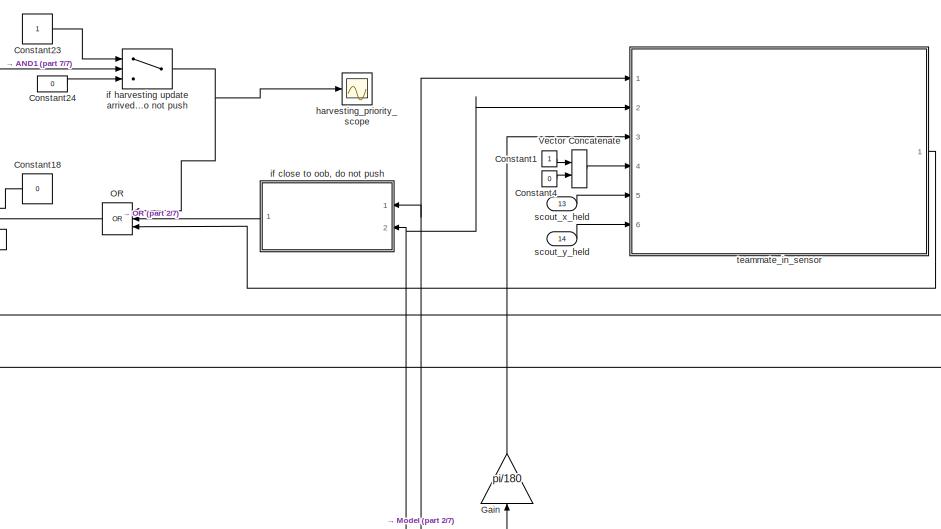
[diagram: root canvas - part 1/7, top center region]
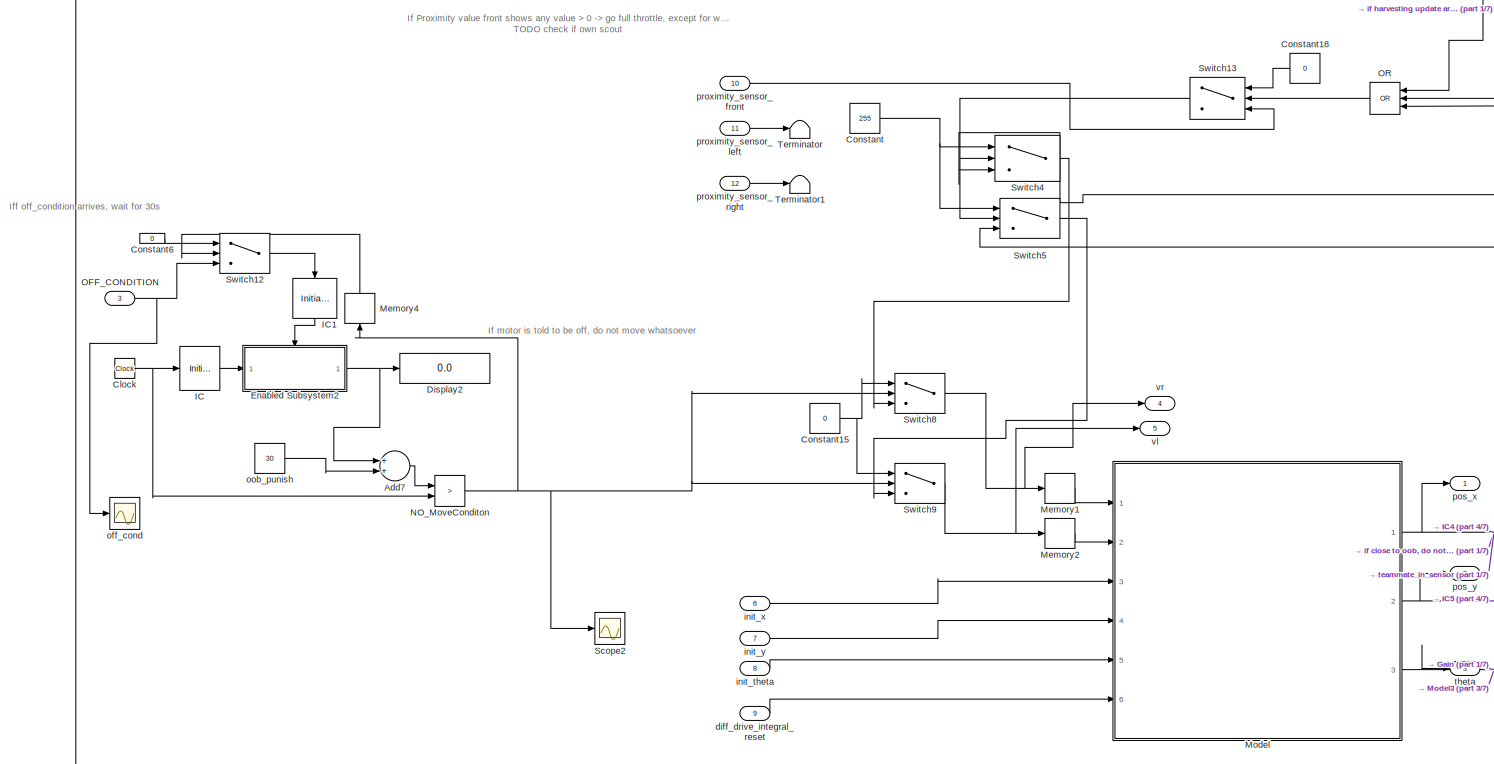
[diagram: root canvas - part 2/7, top left region]
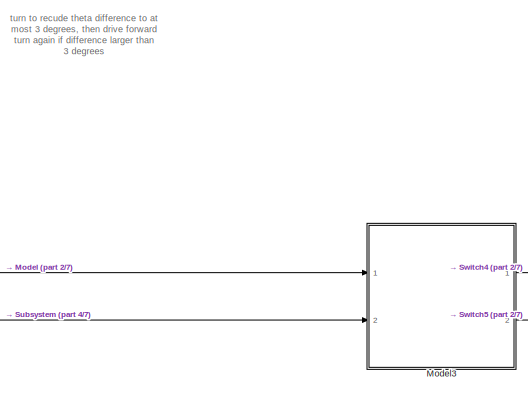
[diagram: root canvas - part 3/7, top right region]
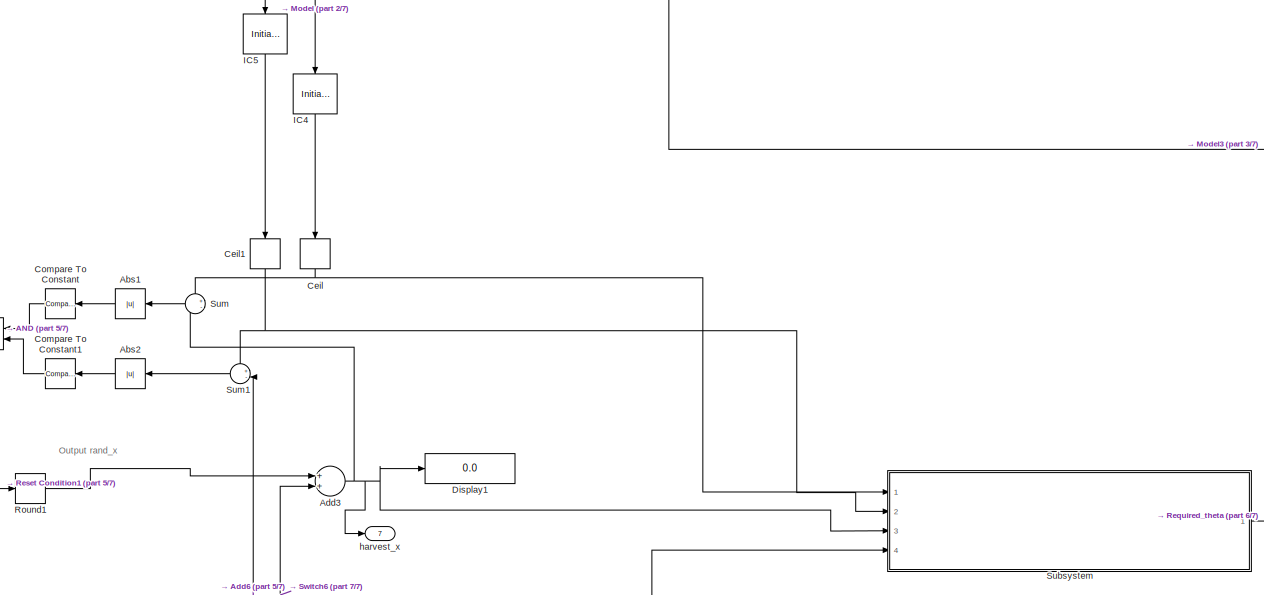
[diagram: root canvas - part 4/7, central region]
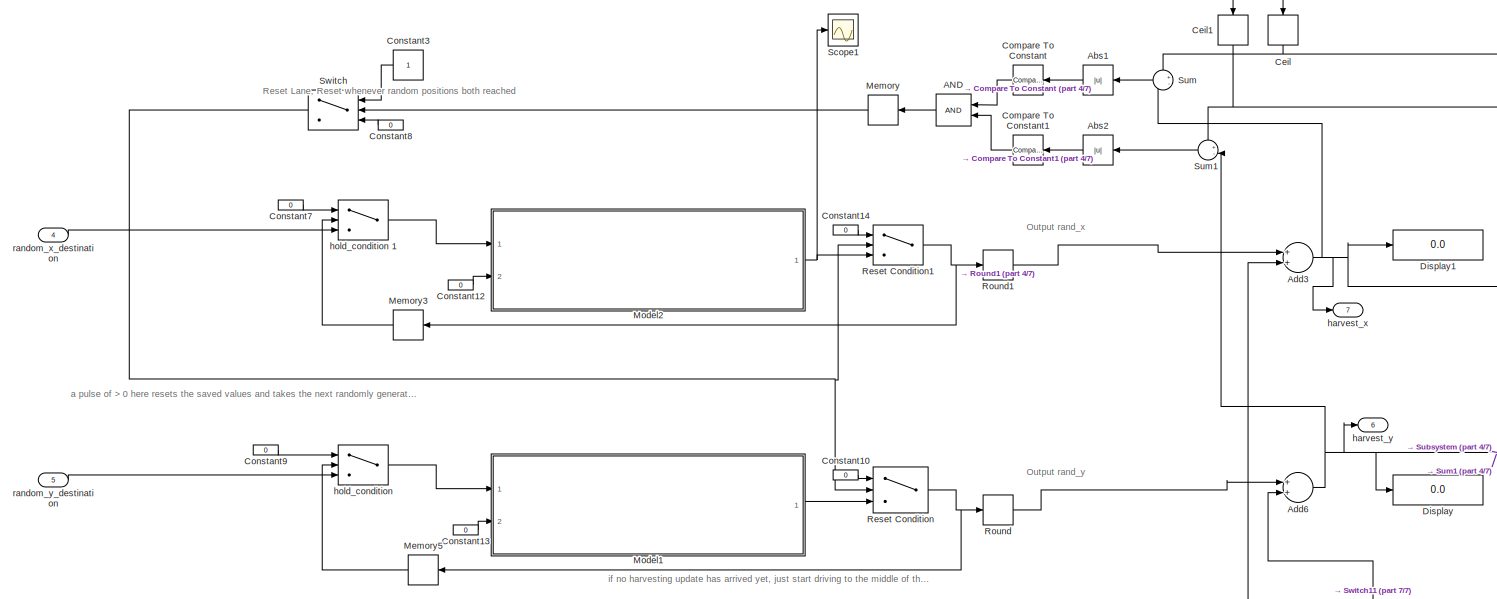
[diagram: root canvas - part 5/7, central region]
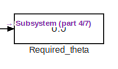
[diagram: root canvas - part 6/7, middle right region]
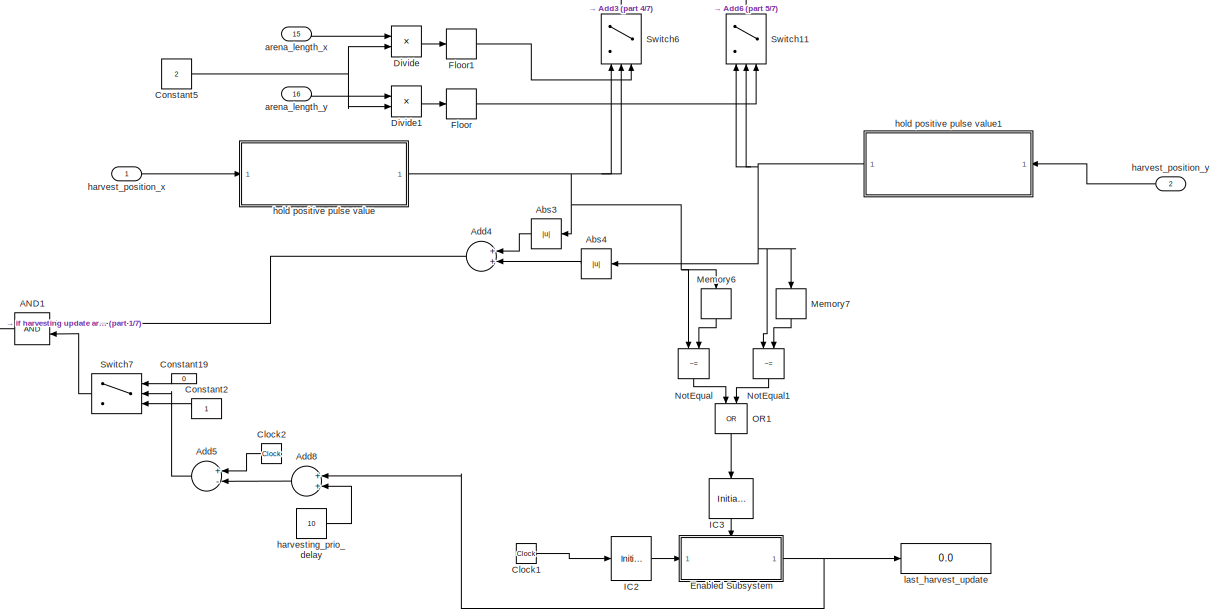
[diagram: root canvas - part 7/7, bottom center region]
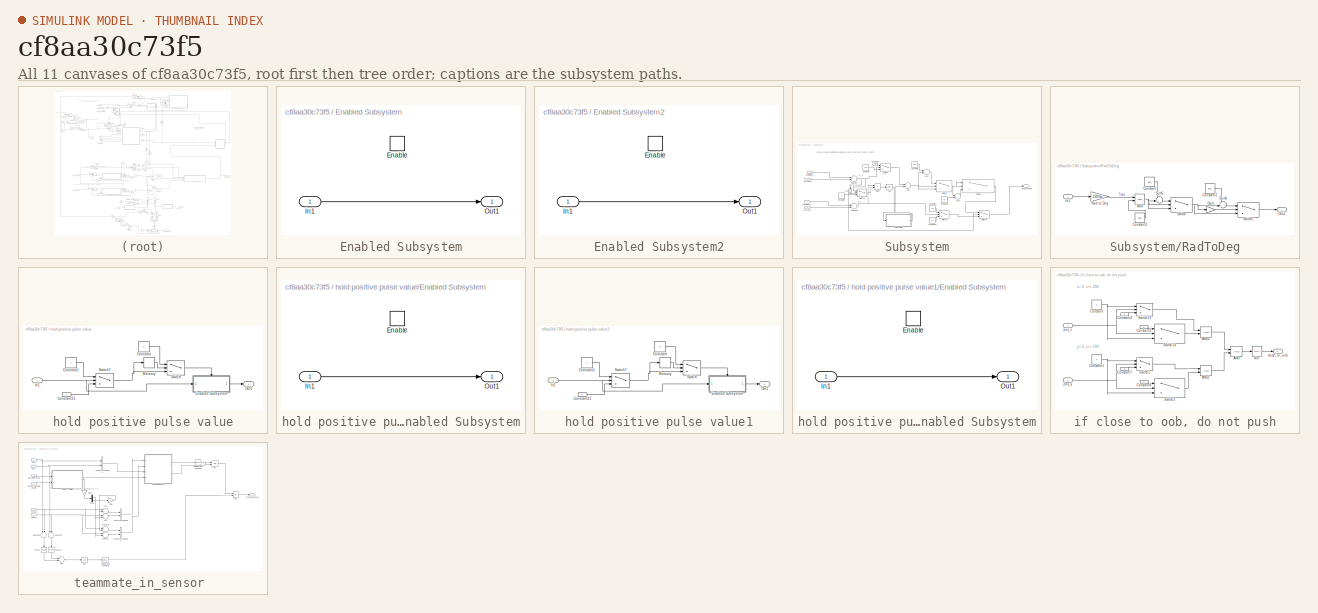
[diagram: thumbnail index - all 11 canvases of the model, root first then tree order]
MODEL slx_cf8aa30c73f5
KIND model
CONFIG AbsTol = auto
CONFIG EnableMultiTasking = off
CONFIG FixedStep = 0.01
CONFIG MaxStep = auto
CONFIG MinStep = auto
CONFIG RelTol = 1e-5
CONFIG SampleTimeConstraint = Unconstrained
CONFIG Solver = VariableStepAuto
CONFIG SolverName = VariableStepAuto
CONFIG StartTime = 0.0
CONFIG StopTime = 120
BLOCK [Logic] AND
  AllPortsSameDT = off
  IconShape = distinctive
  OutDataTypeStr = boolean
  Ports = [2, 1]
BLOCK [Logic] AND1
  AllPortsSameDT = off
  IconShape = distinctive
  OutDataTypeStr = boolean
  Ports = [2, 1]
BLOCK [Abs] Abs1
  SaturateOnIntegerOverflow = off
BLOCK [Abs] Abs2
  SaturateOnIntegerOverflow = off
BLOCK [Abs] Abs3
  SaturateOnIntegerOverflow = off
  ZeroCross = off
BLOCK [Abs] Abs4
  SaturateOnIntegerOverflow = off
  ZeroCross = off
BLOCK [Sum] Add3
  InputSameDT = off
  OutDataTypeStr = Inherit: Inherit via internal rule
  Ports = [2, 1]
  SaturateOnIntegerOverflow = off
BLOCK [Sum] Add4
  InputSameDT = off
  OutDataTypeStr = Inherit: Inherit via internal rule
  Ports = [2, 1]
  SaturateOnIntegerOverflow = off
BLOCK [Sum] Add5
  InputSameDT = off
  Inputs = +-
  OutDataTypeStr = Inherit: Inherit via internal rule
  Ports = [2, 1]
  SaturateOnIntegerOverflow = off
BLOCK [Sum] Add6
  InputSameDT = off
  OutDataTypeStr = Inherit: Inherit via internal rule
  Ports = [2, 1]
  SaturateOnIntegerOverflow = off
BLOCK [Sum] Add7
  InputSameDT = off
  OutDataTypeStr = Inherit: Inherit via internal rule
  Ports = [2, 1]
  SaturateOnIntegerOverflow = off
BLOCK [Sum] Add8
  InputSameDT = off
  OutDataTypeStr = Inherit: Inherit via internal rule
  Ports = [2, 1]
  SaturateOnIntegerOverflow = off
BLOCK [Rounding] Ceil
  Operator = ceil
BLOCK [Rounding] Ceil1
  Operator = ceil
BLOCK [Clock] Clock
BLOCK [Clock] Clock1
BLOCK [Clock] Clock2
BLOCK [Reference] Compare To Constant  REF=simulink/Logic and Bit
Operations/Compare
To Constant
  Ports = [1, 1]
  SourceBlock = simulink/Logic and Bit\nOperations/Compare\nTo Constant
  SourceProductBaseCode = SL
  SourceProductName = Simulink
  SourceType = Compare To Constant
BLOCK [Reference] Compare To Constant1  REF=simulink/Logic and Bit
Operations/Compare
To Constant
  Ports = [1, 1]
  SourceBlock = simulink/Logic and Bit\nOperations/Compare\nTo Constant
  SourceProductBaseCode = SL
  SourceProductName = Simulink
  SourceType = Compare To Constant
BLOCK [Constant] Constant
  Value = 255
BLOCK [Constant] Constant1
BLOCK [Constant] Constant10
  Value = 0
BLOCK [Constant] Constant12
  Value = 0
BLOCK [Constant] Constant13
  Value = 0
BLOCK [Constant] Constant14
  Value = 0
BLOCK [Constant] Constant15
  Value = 0
BLOCK [Constant] Constant18
  Value = 0
BLOCK [Constant] Constant19
  Value = 0
BLOCK [Constant] Constant2
BLOCK [Constant] Constant23
BLOCK [Constant] Constant24
  Value = 0
BLOCK [Constant] Constant3
BLOCK [Constant] Constant4
  Value = 0
BLOCK [Constant] Constant5
  Value = 2
BLOCK [Constant] Constant6
  Value = 0
BLOCK [Constant] Constant7
  Value = 0
BLOCK [Constant] Constant8
  Value = 0
BLOCK [Constant] Constant9
  Value = 0
BLOCK [Display] Display
  Decimation = 1
  Ports = [1]
BLOCK [Display] Display1
  Decimation = 1
  Ports = [1]
BLOCK [Display] Display2
  Decimation = 1
  Ports = [1]
BLOCK [Product] Divide
  InputSameDT = off
  Inputs = */
  OutDataTypeStr = Inherit: Inherit via internal rule
  Ports = [2, 1]
  RndMeth = Floor
  SaturateOnIntegerOverflow = off
BLOCK [Product] Divide1
  InputSameDT = off
  Inputs = */
  OutDataTypeStr = Inherit: Inherit via internal rule
  Ports = [2, 1]
  RndMeth = Floor
  SaturateOnIntegerOverflow = off
BLOCK [SubSystem] Enabled Subsystem
  Ports = [1, 1, 1]
  RequestExecContextInheritance = off
  TreatAsAtomicUnit = on
BLOCK [EnablePort] Enabled Subsystem/Enable
  Ports = []
BLOCK [Inport] Enabled Subsystem/In1
  IconDisplay = Port number
BLOCK [Outport] Enabled Subsystem/Out1
  IconDisplay = Port number
BLOCK [SubSystem] Enabled Subsystem2
  Ports = [1, 1, 1]
  RequestExecContextInheritance = off
  TreatAsAtomicUnit = on
BLOCK [EnablePort] Enabled Subsystem2/Enable
  Ports = []
BLOCK [Inport] Enabled Subsystem2/In1
  IconDisplay = Port number
BLOCK [Outport] Enabled Subsystem2/Out1
  IconDisplay = Port number
BLOCK [Rounding] Floor
BLOCK [Rounding] Floor1
BLOCK [Gain] Gain
  Gain = pi/180
  OutDataTypeStr = Inherit: Inherit via internal rule
  ParamDataTypeStr = Inherit: Inherit via internal rule
  SaturateOnIntegerOverflow = off
BLOCK [InitialCondition] IC
  Value = -30
BLOCK [InitialCondition] IC1
BLOCK [InitialCondition] IC2
  Value = -10
BLOCK [InitialCondition] IC3
BLOCK [InitialCondition] IC4
  Value = 0
BLOCK [InitialCondition] IC5
  Value = 100
BLOCK [Memory] Memory
BLOCK [Memory] Memory1
BLOCK [Memory] Memory2
BLOCK [Memory] Memory3
  InheritSampleTime = on
BLOCK [Memory] Memory4
BLOCK [Memory] Memory5
  InheritSampleTime = on
BLOCK [Memory] Memory6
BLOCK [Memory] Memory7
BLOCK [ModelReference] Model
  ModelNameDialog = differential_drive.slx
  ModelReferenceVersion = 1.313
  Ports = [6, 3]
BLOCK [ModelReference] Model1
  ModelNameDialog = enable_hold.slx
  ModelReferenceVersion = 1.286
  Ports = [2, 1]
BLOCK [ModelReference] Model2
  ModelNameDialog = enable_hold.slx
  ModelReferenceVersion = 1.286
  Ports = [2, 1]
BLOCK [ModelReference] Model3
  ModelNameDialog = theta_correction.slx
  ModelReferenceVersion = 1.14
  Ports = [2, 2]
BLOCK [RelationalOperator] NO_MoveConditon
  InputSameDT = off
  Operator = >
  OutDataTypeStr = boolean
  Ports = [2, 1]
  RndMeth = Simplest
BLOCK [RelationalOperator] NotEqual
  InputSameDT = off
  Operator = ~=
  OutDataTypeStr = boolean
  Ports = [2, 1]
  RndMeth = Simplest
BLOCK [RelationalOperator] NotEqual1
  InputSameDT = off
  Operator = ~=
  OutDataTypeStr = boolean
  Ports = [2, 1]
  RndMeth = Simplest
BLOCK [Inport] OFF_CONDITION 
  IconDisplay = Port number
  OutDataTypeStr = boolean
  Port = 3
BLOCK [Logic] OR
  AllPortsSameDT = off
  IconShape = distinctive
  Inputs = 3
  Operator = OR
  OutDataTypeStr = boolean
  Ports = [3, 1]
BLOCK [Logic] OR1
  AllPortsSameDT = off
  IconShape = distinctive
  Operator = OR
  OutDataTypeStr = boolean
  Ports = [2, 1]
BLOCK [Display] Required_theta
  Decimation = 1
  Ports = [1]
BLOCK [Switch] Reset Condition
  Criteria = u2 > Threshold
  InputSameDT = off
  SaturateOnIntegerOverflow = off
BLOCK [Switch] Reset Condition1
  Criteria = u2 > Threshold
  InputSameDT = off
  SaturateOnIntegerOverflow = off
BLOCK [Rounding] Round
  Operator = ceil
BLOCK [Rounding] Round1
  Operator = ceil
BLOCK [Scope] Scope1
  Floating = off
  NumInputPorts = 1
  Ports = [1]
  ScopeSpecificationString = Simulink.scopes.TimeScopeBlockCfg('CurrentConfiguration', extmgr.ConfigurationSet(extmgr.Configuration('Core','General UI',true),extmgr.Configuration('Core','Source UI',true),extmgr.Configuration('Sources','WiredSimulink',true,'DataLoggingVariableName','ScopeData1'),extmgr.Configuration('Visuals','Time Domain',true,'SerializedDisplays',{struct('MinYLimReal','2.35632','MaxYLimReal','4.35632','YLabe...<+1441ch>
BLOCK [Scope] Scope2
  Floating = off
  NumInputPorts = 1
  Ports = [1]
  ScopeSpecificationString = Simulink.scopes.TimeScopeBlockCfg('CurrentConfiguration', extmgr.ConfigurationSet(extmgr.Configuration('Core','General UI',true),extmgr.Configuration('Core','Source UI',true),extmgr.Configuration('Sources','WiredSimulink',true,'DataLoggingVariableName','ScopeData1'),extmgr.Configuration('Visuals','Time Domain',true,'SerializedDisplays',{struct('MinYLimReal','-1.00000','MaxYLimReal','1.00000','YLab...<+1374ch>
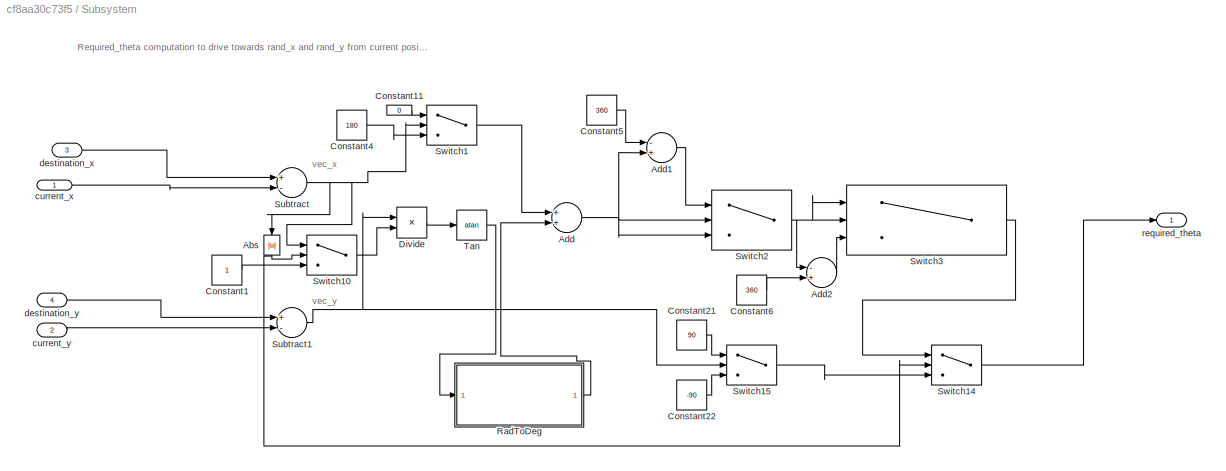
BLOCK [SubSystem] Subsystem
  Ports = [4, 1]
  RequestExecContextInheritance = off
BLOCK [Abs] Subsystem/Abs
  SaturateOnIntegerOverflow = off
BLOCK [Sum] Subsystem/Add
  InputSameDT = off
  OutDataTypeStr = Inherit: Inherit via internal rule
  Ports = [2, 1]
  SaturateOnIntegerOverflow = off
BLOCK [Sum] Subsystem/Add1
  InputSameDT = off
  Inputs = -+
  OutDataTypeStr = Inherit: Inherit via internal rule
  Ports = [2, 1]
  SaturateOnIntegerOverflow = off
BLOCK [Sum] Subsystem/Add2
  InputSameDT = off
  Inputs = -+
  OutDataTypeStr = Inherit: Inherit via internal rule
  Ports = [2, 1]
  SaturateOnIntegerOverflow = off
BLOCK [Constant] Subsystem/Constant1
BLOCK [Constant] Subsystem/Constant11
  Value = 0
BLOCK [Constant] Subsystem/Constant21
  Value = 90
BLOCK [Constant] Subsystem/Constant22
  Value = -90
BLOCK [Constant] Subsystem/Constant4
  Value = 180
BLOCK [Constant] Subsystem/Constant5
  Value = 360
BLOCK [Constant] Subsystem/Constant6
  Value = 360
BLOCK [Product] Subsystem/Divide
  InputSameDT = off
  Inputs = */
  OutDataTypeStr = Inherit: Inherit via internal rule
  Ports = [2, 1]
  RndMeth = Floor
  SaturateOnIntegerOverflow = off
BLOCK [SubSystem] Subsystem/RadToDeg
  Ports = [1, 1]
  RequestExecContextInheritance = off
BLOCK [Constant] Subsystem/RadToDeg/Constant
  Value = 360
BLOCK [Constant] Subsystem/RadToDeg/Constant1
  Value = 360
BLOCK [Constant] Subsystem/RadToDeg/Constant2
  Value = 360
BLOCK [Gain] Subsystem/RadToDeg/Gain
  Gain = -1
  OutDataTypeStr = Inherit: Inherit via internal rule
  ParamDataTypeStr = Inherit: Inherit via internal rule
  SaturateOnIntegerOverflow = off
BLOCK [Inport] Subsystem/RadToDeg/In1
  IconDisplay = Port number
BLOCK [Math] Subsystem/RadToDeg/Mod
  Operator = mod
  Ports = [2, 1]
BLOCK [Outport] Subsystem/RadToDeg/Out1
  IconDisplay = Port number
BLOCK [Gain] Subsystem/RadToDeg/Rad to Deg
  Gain = 180/pi
  OutDataTypeStr = Inherit: Inherit via internal rule
  ParamDataTypeStr = Inherit: Inherit via internal rule
  SaturateOnIntegerOverflow = off
BLOCK [Sum] Subsystem/RadToDeg/Sum5
  IconShape = round
  InputSameDT = off
  Inputs = -+|
  OutDataTypeStr = Inherit: Inherit via internal rule
  Ports = [2, 1]
  SaturateOnIntegerOverflow = off
BLOCK [Sum] Subsystem/RadToDeg/Sum6
  IconShape = round
  InputSameDT = off
  Inputs = ++|
  OutDataTypeStr = Inherit: Inherit via internal rule
  Ports = [2, 1]
  SaturateOnIntegerOverflow = off
BLOCK [Switch] Subsystem/RadToDeg/Switch
  Criteria = u2 > Threshold
  InputSameDT = off
  SaturateOnIntegerOverflow = off
  Threshold = 180
  ZeroCross = off
BLOCK [Switch] Subsystem/RadToDeg/Switch1
  Criteria = u2 > Threshold
  InputSameDT = off
  SaturateOnIntegerOverflow = off
  Threshold = 180
BLOCK [Sum] Subsystem/Subtract
  InputSameDT = off
  Inputs = +-
  OutDataTypeStr = Inherit: Inherit via internal rule
  Ports = [2, 1]
  SaturateOnIntegerOverflow = off
BLOCK [Sum] Subsystem/Subtract1
  InputSameDT = off
  Inputs = +-
  OutDataTypeStr = Inherit: Inherit via internal rule
  Ports = [2, 1]
  SaturateOnIntegerOverflow = off
BLOCK [Switch] Subsystem/Switch1
  InputSameDT = off
  SaturateOnIntegerOverflow = off
  ZeroCross = off
BLOCK [Switch] Subsystem/Switch10
  Criteria = u2 > Threshold
  InputSameDT = off
  SaturateOnIntegerOverflow = off
  Threshold = 1
  ZeroCross = off
BLOCK [Switch] Subsystem/Switch14
  Criteria = u2 > Threshold
  InputSameDT = off
  SaturateOnIntegerOverflow = off
  Threshold = 1
  ZeroCross = off
BLOCK [Switch] Subsystem/Switch15
  Criteria = u2 > Threshold
  InputSameDT = off
  SaturateOnIntegerOverflow = off
  ZeroCross = off
BLOCK [Switch] Subsystem/Switch2
  Criteria = u2 > Threshold
  InputSameDT = off
  SaturateOnIntegerOverflow = off
  Threshold = 180
  ZeroCross = off
BLOCK [Switch] Subsystem/Switch3
  InputSameDT = off
  SaturateOnIntegerOverflow = off
  Threshold = -180
  ZeroCross = off
BLOCK [Trigonometry] Subsystem/Tan
  Operator = atan
  OutputSignalType = real
  Ports = [1, 1]
BLOCK [Inport] Subsystem/current_x
  IconDisplay = Port number
BLOCK [Inport] Subsystem/current_y
  IconDisplay = Port number
  Port = 2
BLOCK [Inport] Subsystem/destination_x
  IconDisplay = Port number
  Port = 3
BLOCK [Inport] Subsystem/destination_y
  IconDisplay = Port number
  Port = 4
BLOCK [Outport] Subsystem/required_theta
  IconDisplay = Port number
BLOCK [Sum] Sum
  IconShape = round
  InputSameDT = off
  Inputs = +-
  OutDataTypeStr = Inherit: Inherit via internal rule
  Ports = [2, 1]
  SaturateOnIntegerOverflow = off
BLOCK [Sum] Sum1
  IconShape = round
  InputSameDT = off
  Inputs = +-
  OutDataTypeStr = Inherit: Inherit via internal rule
  Ports = [2, 1]
  SaturateOnIntegerOverflow = off
BLOCK [Switch] Switch
  Criteria = u2 > Threshold
  InputSameDT = off
  SaturateOnIntegerOverflow = off
BLOCK [Switch] Switch11
  Criteria = u2 > Threshold
  InputSameDT = off
  SaturateOnIntegerOverflow = off
BLOCK [Switch] Switch12
  Criteria = u2 > Threshold
  InputSameDT = off
  SaturateOnIntegerOverflow = off
BLOCK [Switch] Switch13
  Criteria = u2 > Threshold
  InputSameDT = off
  SaturateOnIntegerOverflow = off
  ZeroCross = off
BLOCK [Switch] Switch4
  Criteria = u2 > Threshold
  InputSameDT = off
  SaturateOnIntegerOverflow = off
  Threshold = 100
BLOCK [Switch] Switch5
  Criteria = u2 > Threshold
  InputSameDT = off
  SaturateOnIntegerOverflow = off
  Threshold = 100
BLOCK [Switch] Switch6
  Criteria = u2 > Threshold
  InputSameDT = off
  SaturateOnIntegerOverflow = off
BLOCK [Switch] Switch7
  Criteria = u2 > Threshold
  InputSameDT = off
  SaturateOnIntegerOverflow = off
  ZeroCross = off
BLOCK [Switch] Switch8
  Criteria = u2 > Threshold
  InputSameDT = off
  SaturateOnIntegerOverflow = off
BLOCK [Switch] Switch9
  Criteria = u2 > Threshold
  InputSameDT = off
  SaturateOnIntegerOverflow = off
BLOCK [Terminator] Terminator
BLOCK [Terminator] Terminator1
BLOCK [Concatenate] Vector Concatenate
  Ports = [2, 1]
BLOCK [Inport] arena_length_x
  IconDisplay = Port number
  Port = 15
BLOCK [Inport] arena_length_y
  IconDisplay = Port number
  Port = 16
BLOCK [Inport] diff_drive_integral_reset
  IconDisplay = Port number
  Port = 9
BLOCK [Inport] harvest_position_x
  IconDisplay = Port number
BLOCK [Inport] harvest_position_y
  IconDisplay = Port number
  Port = 2
BLOCK [Outport] harvest_x
  IconDisplay = Port number
  Port = 7
BLOCK [Outport] harvest_y
  IconDisplay = Port number
  Port = 6
BLOCK [Constant] harvesting_prio_delay
  Value = 10
BLOCK [Scope] harvesting_priority_scope
  Floating = off
  NumInputPorts = 1
  Ports = [1]
  ScopeSpecificationString = Simulink.scopes.TimeScopeBlockCfg('CurrentConfiguration', extmgr.ConfigurationSet(extmgr.Configuration('Core','General UI',true),extmgr.Configuration('Core','Source UI',true),extmgr.Configuration('Sources','WiredSimulink',true,'DataLoggingVariableName','ScopeData1'),extmgr.Configuration('Visuals','Time Domain',true,'SerializedDisplays',{struct('MinYLimReal','-0.125','MaxYLimReal','1.125','YLabelRe...<+1414ch>
BLOCK [SubSystem] hold positive pulse value
  Ports = [1, 1]
  RequestExecContextInheritance = off
BLOCK [Constant] hold positive pulse value/Constant
  Value = 0
BLOCK [Constant] hold positive pulse value/Constant1
BLOCK [Constant] hold positive pulse value/Constant21
  Value = 0
BLOCK [SubSystem] hold positive pulse value/Enabled Subsystem
  Ports = [1, 1, 1]
  RequestExecContextInheritance = off
  TreatAsAtomicUnit = on
BLOCK [EnablePort] hold positive pulse value/Enabled Subsystem/Enable
  Ports = []
BLOCK [Inport] hold positive pulse value/Enabled Subsystem/In1
  IconDisplay = Port number
BLOCK [Outport] hold positive pulse value/Enabled Subsystem/Out1
  IconDisplay = Port number
BLOCK [Inport] hold positive pulse value/In1
  IconDisplay = Port number
BLOCK [Memory] hold positive pulse value/Memory
BLOCK [Outport] hold positive pulse value/Out1
  IconDisplay = Port number
BLOCK [Switch] hold positive pulse value/Switch
  Criteria = u2 > Threshold
  InputSameDT = off
  SaturateOnIntegerOverflow = off
BLOCK [Switch] hold positive pulse value/Switch7
  Criteria = u2 > Threshold
  InputSameDT = off
  SaturateOnIntegerOverflow = off
BLOCK [SubSystem] hold positive pulse value1
  Ports = [1, 1]
  RequestExecContextInheritance = off
BLOCK [Constant] hold positive pulse value1/Constant
  Value = 0
BLOCK [Constant] hold positive pulse value1/Constant1
BLOCK [Constant] hold positive pulse value1/Constant21
  Value = 0
BLOCK [SubSystem] hold positive pulse value1/Enabled Subsystem
  Ports = [1, 1, 1]
  RequestExecContextInheritance = off
  TreatAsAtomicUnit = on
BLOCK [EnablePort] hold positive pulse value1/Enabled Subsystem/Enable
  Ports = []
BLOCK [Inport] hold positive pulse value1/Enabled Subsystem/In1
  IconDisplay = Port number
BLOCK [Outport] hold positive pulse value1/Enabled Subsystem/Out1
  IconDisplay = Port number
BLOCK [Inport] hold positive pulse value1/In1
  IconDisplay = Port number
BLOCK [Memory] hold positive pulse value1/Memory
BLOCK [Outport] hold positive pulse value1/Out1
  IconDisplay = Port number
BLOCK [Switch] hold positive pulse value1/Switch
  Criteria = u2 > Threshold
  InputSameDT = off
  SaturateOnIntegerOverflow = off
BLOCK [Switch] hold positive pulse value1/Switch7
  Criteria = u2 > Threshold
  InputSameDT = off
  SaturateOnIntegerOverflow = off
BLOCK [Switch] hold_condition 
  Criteria = u2 > Threshold
  InputSameDT = off
  SaturateOnIntegerOverflow = off
BLOCK [Switch] hold_condition 1
  Criteria = u2 > Threshold
  InputSameDT = off
  SaturateOnIntegerOverflow = off
BLOCK [SubSystem] if close to oob, do not push
  Ports = [2, 1]
  RequestExecContextInheritance = off
BLOCK [Logic] if close to oob, do not push/AND
  AllPortsSameDT = off
  IconShape = distinctive
  OutDataTypeStr = boolean
  Ports = [2, 1]
BLOCK [Logic] if close to oob, do not push/AND1
  AllPortsSameDT = off
  IconShape = distinctive
  OutDataTypeStr = boolean
  Ports = [2, 1]
BLOCK [Logic] if close to oob, do not push/AND2
  AllPortsSameDT = off
  IconShape = distinctive
  OutDataTypeStr = boolean
  Ports = [2, 1]
BLOCK [Constant] if close to oob, do not push/Constant
BLOCK [Constant] if close to oob, do not push/Constant1
BLOCK [Constant] if close to oob, do not push/Constant2
  Value = 0
BLOCK [Constant] if close to oob, do not push/Constant3
  Value = 0
BLOCK [Constant] if close to oob, do not push/Constant4
  Value = 0
BLOCK [Constant] if close to oob, do not push/Constant7
  Value = 0
BLOCK [Logic] if close to oob, do not push/NOT
  AllPortsSameDT = off
  IconShape = distinctive
  Operator = NOT
  OutDataTypeStr = boolean
  Ports = [1, 1]
BLOCK [Switch] if close to oob, do not push/Switch1
  Criteria = u2 > Threshold
  InputSameDT = off
  SaturateOnIntegerOverflow = off
  Threshold = 5
  ZeroCross = off
BLOCK [Switch] if close to oob, do not push/Switch13
  Criteria = u2 > Threshold
  InputSameDT = off
  SaturateOnIntegerOverflow = off
  Threshold = 5
  ZeroCross = off
BLOCK [Switch] if close to oob, do not push/Switch14
  Criteria = u2 > Threshold
  InputSameDT = off
  SaturateOnIntegerOverflow = off
  Threshold = 195
  ZeroCross = off
BLOCK [Switch] if close to oob, do not push/Switch2
  Criteria = u2 > Threshold
  InputSameDT = off
  SaturateOnIntegerOverflow = off
  Threshold = 95
  ZeroCross = off
BLOCK [Outport] if close to oob, do not push/close_to_oob 
  IconDisplay = Port number
BLOCK [Inport] if close to oob, do not push/pos_x
  IconDisplay = Port number
BLOCK [Inport] if close to oob, do not push/pos_y
  IconDisplay = Port number
  Port = 2
BLOCK [Switch] if harvesting update arrived in the last 10 seconds -> do not push
  Criteria = u2 > Threshold
  InputSameDT = off
  SaturateOnIntegerOverflow = off
  ZeroCross = off
BLOCK [Inport] init_theta 
  IconDisplay = Port number
  Port = 8
BLOCK [Inport] init_x 
  IconDisplay = Port number
  Port = 6
BLOCK [Inport] init_y
  IconDisplay = Port number
  Port = 7
BLOCK [Display] last_harvest_update
  Decimation = 1
  Ports = [1]
BLOCK [Scope] off_cond
  Floating = off
  NumInputPorts = 1
  Ports = [1]
  ScopeSpecificationString = Simulink.scopes.TimeScopeBlockCfg('CurrentConfiguration', extmgr.ConfigurationSet(extmgr.Configuration('Core','General UI',true),extmgr.Configuration('Core','Source UI',true),extmgr.Configuration('Sources','WiredSimulink',true,'DataLoggingVariableName','ScopeData1'),extmgr.Configuration('Visuals','Time Domain',true),extmgr.Configuration('Tools','Plot Navigation',true),extmgr.Configuration('Tools',...<+40ch>
BLOCK [Constant] oob_punish
  Value = 30
BLOCK [Outport] pos_x
  IconDisplay = Port number
BLOCK [Outport] pos_y
  IconDisplay = Port number
  Port = 2
BLOCK [Inport] proximity_sensor_front
  IconDisplay = Port number
  Port = 10
BLOCK [Inport] proximity_sensor_left
  IconDisplay = Port number
  Port = 11
BLOCK [Inport] proximity_sensor_right
  IconDisplay = Port number
  Port = 12
BLOCK [Inport] random_x_destination
  IconDisplay = Port number
  Port = 4
BLOCK [Inport] random_y_destination
  IconDisplay = Port number
  Port = 5
BLOCK [Inport] scout_x_held
  IconDisplay = Port number
  Port = 13
BLOCK [Inport] scout_y_held
  IconDisplay = Port number
  Port = 14
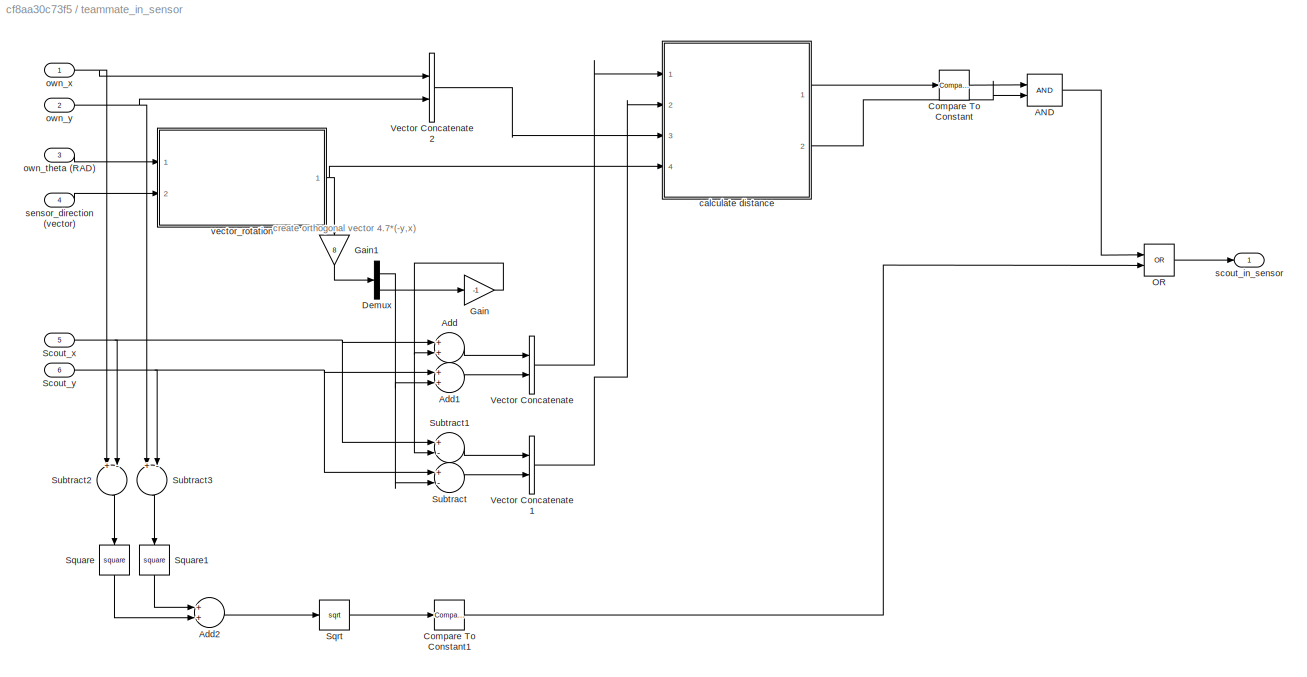
BLOCK [SubSystem] teammate_in_sensor 
  Ports = [6, 1]
  RequestExecContextInheritance = off
BLOCK [Logic] teammate_in_sensor /AND
  AllPortsSameDT = off
  IconShape = distinctive
  OutDataTypeStr = boolean
  Ports = [2, 1]
BLOCK [Sum] teammate_in_sensor /Add
  InputSameDT = off
  OutDataTypeStr = Inherit: Inherit via internal rule
  Ports = [2, 1]
  SaturateOnIntegerOverflow = off
BLOCK [Sum] teammate_in_sensor /Add1
  InputSameDT = off
  OutDataTypeStr = Inherit: Inherit via internal rule
  Ports = [2, 1]
  SaturateOnIntegerOverflow = off
BLOCK [Sum] teammate_in_sensor /Add2
  InputSameDT = off
  OutDataTypeStr = Inherit: Inherit via internal rule
  Ports = [2, 1]
  SaturateOnIntegerOverflow = off
BLOCK [Reference] teammate_in_sensor /Compare To Constant  REF=simulink/Logic and Bit
Operations/Compare
To Constant
  Ports = [1, 1]
  SourceBlock = simulink/Logic and Bit\nOperations/Compare\nTo Constant
  SourceProductBaseCode = SL
  SourceProductName = Simulink
  SourceType = Compare To Constant
BLOCK [Reference] teammate_in_sensor /Compare To Constant1  REF=simulink/Logic and Bit
Operations/Compare
To Constant
  Ports = [1, 1]
  SourceBlock = simulink/Logic and Bit\nOperations/Compare\nTo Constant
  SourceProductBaseCode = SL
  SourceProductName = Simulink
  SourceType = Compare To Constant
BLOCK [Demux] teammate_in_sensor /Demux
  DisplayOption = bar
  Outputs = 2
  Ports = [1, 2]
BLOCK [Gain] teammate_in_sensor /Gain
  Gain = -1
  OutDataTypeStr = Inherit: Inherit via internal rule
  ParamDataTypeStr = Inherit: Inherit via internal rule
  SaturateOnIntegerOverflow = off
BLOCK [Gain] teammate_in_sensor /Gain1
  Gain = 8
  OutDataTypeStr = Inherit: Inherit via internal rule
  ParamDataTypeStr = Inherit: Inherit via internal rule
  SaturateOnIntegerOverflow = off
BLOCK [Logic] teammate_in_sensor /OR
  AllPortsSameDT = off
  IconShape = distinctive
  Operator = OR
  OutDataTypeStr = boolean
  Ports = [2, 1]
BLOCK [Inport] teammate_in_sensor /Scout_x
  IconDisplay = Port number
  Port = 5
BLOCK [Inport] teammate_in_sensor /Scout_y
  IconDisplay = Port number
  Port = 6
BLOCK [Sqrt] teammate_in_sensor /Sqrt
BLOCK [Math] teammate_in_sensor /Square
  Operator = square
  Ports = [1, 1]
BLOCK [Math] teammate_in_sensor /Square1
  Operator = square
  Ports = [1, 1]
BLOCK [Sum] teammate_in_sensor /Subtract
  InputSameDT = off
  Inputs = +-
  OutDataTypeStr = Inherit: Inherit via internal rule
  Ports = [2, 1]
  SaturateOnIntegerOverflow = off
BLOCK [Sum] teammate_in_sensor /Subtract1
  InputSameDT = off
  Inputs = +-
  OutDataTypeStr = Inherit: Inherit via internal rule
  Ports = [2, 1]
  SaturateOnIntegerOverflow = off
BLOCK [Sum] teammate_in_sensor /Subtract2
  InputSameDT = off
  Inputs = +-
  OutDataTypeStr = Inherit: Inherit via internal rule
  Ports = [2, 1]
  SaturateOnIntegerOverflow = off
BLOCK [Sum] teammate_in_sensor /Subtract3
  InputSameDT = off
  Inputs = +-
  OutDataTypeStr = Inherit: Inherit via internal rule
  Ports = [2, 1]
  SaturateOnIntegerOverflow = off
BLOCK [Concatenate] teammate_in_sensor /Vector Concatenate
  Ports = [2, 1]
BLOCK [Concatenate] teammate_in_sensor /Vector Concatenate1
  Ports = [2, 1]
BLOCK [Concatenate] teammate_in_sensor /Vector Concatenate2
  Ports = [2, 1]
BLOCK [ModelReference] teammate_in_sensor /calculate distance
  ModelNameDialog = calculate_intersection.slx
  ModelReferenceVersion = 1.12
  Ports = [4, 2]
BLOCK [Inport] teammate_in_sensor /own_theta (RAD)
  IconDisplay = Port number
  Port = 3
BLOCK [Inport] teammate_in_sensor /own_x
  IconDisplay = Port number
BLOCK [Inport] teammate_in_sensor /own_y
  IconDisplay = Port number
  Port = 2
BLOCK [Outport] teammate_in_sensor /scout_in_sensor
  IconDisplay = Port number
BLOCK [Inport] teammate_in_sensor /sensor_direction (vector) 
  IconDisplay = Port number
  Port = 4
BLOCK [ModelReference] teammate_in_sensor /vector_rotation
  ModelNameDialog = vector_rotation
  ModelReferenceVersion = 1.21
  Ports = [2, 1]
BLOCK [Outport] theta
  IconDisplay = Port number
  Port = 3
BLOCK [Outport] vl
  IconDisplay = Port number
  Port = 5
BLOCK [Outport] vr
  IconDisplay = Port number
  Port = 4
ANNOTATION (root): Condition for harvest update by Scout arrived
ANNOTATION (root): If Proximity value front shows any value > 0 -> go full throttle, except for when close to oob TODO check if own scout
ANNOTATION (root): If motor is told to be off, do not move whatsoever
ANNOTATION (root): Iff off_condition arrives, wait for 30s
ANNOTATION (root): Output rand_x
ANNOTATION (root): Output rand_y
ANNOTATION (root): Reset Lane, Reset whenever random positions both reached
ANNOTATION (root): a pulse of > 0 here resets the saved values and takes the next randomly generated value
ANNOTATION (root): if no harvesting update has arrived yet, just start driving to the middle of the arena
ANNOTATION (root): turn to recude theta difference to at most 3 degrees, then drive forward turn again if difference larger than 3 degrees
ANNOTATION Subsystem: Required_theta computation to drive towards rand_x and rand_y from current position
ANNOTATION Subsystem: vec_x
ANNOTATION Subsystem: vec_y
ANNOTATION if close to oob, do not push: x > 0, x <= 200
ANNOTATION if close to oob, do not push: y > 0, y <= 100
ANNOTATION teammate_in_sensor : create orthogonal vector 4.7*(-y,x)
LINE AND1:1 -> if harvesting update arrived in the last 10 seconds -> do not push:2
LINE AND:1 -> Memory:1
LINE Abs1:1 -> Compare To Constant:1
LINE Abs2:1 -> Compare To Constant1:1
LINE Abs3:1 -> Add4:1
LINE Abs4:1 -> Add4:2
NET Add3:1 -> Display1:1, Subsystem:3, Sum:2, harvest_x:1
LINE Add4:1 -> AND1:1
LINE Add5:1 -> Switch7:2
NET Add6:1 -> Display:1, Subsystem:4, Sum1:2, harvest_y:1
LINE Add7:1 -> NO_MoveConditon:1
LINE Add8:1 -> Add5:2
NET Ceil1:1 -> Subsystem:2, Sum1:1
NET Ceil:1 -> Subsystem:1, Sum:1
LINE Clock1:1 -> IC2:1
LINE Clock2:1 -> Add5:1
NET Clock:1 -> IC:1, NO_MoveConditon:2
LINE Compare To Constant1:1 -> AND:2
LINE Compare To Constant:1 -> AND:1
LINE Constant10:1 -> Reset Condition:1
LINE Constant12:1 -> Model2:2
LINE Constant13:1 -> Model1:2
LINE Constant14:1 -> Reset Condition1:1
NET Constant15:1 -> Switch8:1, Switch9:1
LINE Constant18:1 -> Switch13:1
LINE Constant19:1 -> Switch7:1
LINE Constant1:1 -> Vector Concatenate:1
LINE Constant23:1 -> if harvesting update arrived in the last 10 seconds -> do not push:1
LINE Constant24:1 -> if harvesting update arrived in the last 10 seconds -> do not push:3
LINE Constant2:1 -> Switch7:3
LINE Constant3:1 -> Switch:1
LINE Constant4:1 -> Vector Concatenate:2
NET Constant5:1 -> Divide1:2, Divide:2
LINE Constant6:1 -> Switch12:1
LINE Constant7:1 -> hold_condition 1:1
LINE Constant8:1 -> Switch:3
LINE Constant9:1 -> hold_condition :1
NET Constant:1 -> Switch4:1, Switch5:1
LINE Divide1:1 -> Floor:1
LINE Divide:1 -> Floor1:1
LINE Enabled Subsystem/In1:1 -> Enabled Subsystem/Out1:1
LINE Enabled Subsystem2/In1:1 -> Enabled Subsystem2/Out1:1
NET Enabled Subsystem2:1 -> Add7:1, Display2:1
NET Enabled Subsystem:1 -> Add8:1, last_harvest_update:1
LINE Floor1:1 -> Switch6:3
LINE Floor:1 -> Switch11:3
LINE Gain:1 -> teammate_in_sensor :3
LINE IC1:1 -> Enabled Subsystem2:enable
LINE IC2:1 -> Enabled Subsystem:1
LINE IC3:1 -> Enabled Subsystem:enable
LINE IC4:1 -> Ceil:1
LINE IC5:1 -> Ceil1:1
LINE IC:1 -> Enabled Subsystem2:1
LINE Memory1:1 -> Model:1
LINE Memory2:1 -> Model:2
LINE Memory3:1 -> hold_condition 1:2
LINE Memory4:1 -> Switch12:2
LINE Memory5:1 -> hold_condition :2
LINE Memory6:1 -> NotEqual:2
LINE Memory7:1 -> NotEqual1:2
LINE Memory:1 -> Switch:2
LINE Model1:1 -> Reset Condition:3
NET Model2:1 -> Reset Condition1:3, Scope1:1
LINE Model3:1 -> Switch4:3
LINE Model3:2 -> Switch5:3
NET Model:1 -> IC4:1, if close to oob, do not push:1, pos_x:1, teammate_in_sensor :1
NET Model:2 -> IC5:1, if close to oob, do not push:2, pos_y:1, teammate_in_sensor :2
NET Model:3 -> Gain:1, Model3:1, theta:1
NET NO_MoveConditon:1 -> Memory4:1, Scope2:1, Switch8:2, Switch9:2
LINE NotEqual1:1 -> OR1:2
LINE NotEqual:1 -> OR1:1
NET OFF_CONDITION :1 -> Switch12:3, off_cond:1
LINE OR1:1 -> IC3:1
LINE OR:1 -> Switch13:2
NET Reset Condition1:1 -> Memory3:1, Round1:1
NET Reset Condition:1 -> Memory5:1, Round:1
LINE Round1:1 -> Add3:1
LINE Round:1 -> Add6:1
NET Subsystem/Abs:1 -> Subsystem/Switch10:2, Subsystem/Switch14:2
LINE Subsystem/Add1:1 -> Subsystem/Switch2:1
LINE Subsystem/Add2:1 -> Subsystem/Switch3:3
NET Subsystem/Add:1 -> Subsystem/Add1:2, Subsystem/Switch2:2, Subsystem/Switch2:3
LINE Subsystem/Constant11:1 -> Subsystem/Switch1:1
LINE Subsystem/Constant1:1 -> Subsystem/Switch10:3
LINE Subsystem/Constant21:1 -> Subsystem/Switch15:1
LINE Subsystem/Constant22:1 -> Subsystem/Switch15:3
LINE Subsystem/Constant4:1 -> Subsystem/Switch1:3
LINE Subsystem/Constant5:1 -> Subsystem/Add1:1
LINE Subsystem/Constant6:1 -> Subsystem/Add2:2
LINE Subsystem/Divide:1 -> Subsystem/Tan:1
LINE Subsystem/RadToDeg/Constant1:1 -> Subsystem/RadToDeg/Sum6:1
LINE Subsystem/RadToDeg/Constant2:1 -> Subsystem/RadToDeg/Mod:2
LINE Subsystem/RadToDeg/Constant:1 -> Subsystem/RadToDeg/Sum5:1
LINE Subsystem/RadToDeg/Gain:1 -> Subsystem/RadToDeg/Switch1:2
LINE Subsystem/RadToDeg/In1:1 -> Subsystem/RadToDeg/Rad to Deg:1
NET Subsystem/RadToDeg/Mod:1 -> Subsystem/RadToDeg/Sum5:2, Subsystem/RadToDeg/Switch:2, Subsystem/RadToDeg/Switch:3
LINE Subsystem/RadToDeg/Rad to Deg:1 -> Subsystem/RadToDeg/Mod:1
LINE Subsystem/RadToDeg/Sum5:1 -> Subsystem/RadToDeg/Switch:1
LINE Subsystem/RadToDeg/Sum6:1 -> Subsystem/RadToDeg/Switch1:1
LINE Subsystem/RadToDeg/Switch1:1 -> Subsystem/RadToDeg/Out1:1
NET Subsystem/RadToDeg/Switch:1 -> Subsystem/RadToDeg/Gain:1, Subsystem/RadToDeg/Sum6:2, Subsystem/RadToDeg/Switch1:3
LINE Subsystem/RadToDeg:1 -> Subsystem/Add:2
NET Subsystem/Subtract1:1 -> Subsystem/Divide:1, Subsystem/Switch15:2
NET Subsystem/Subtract:1 -> Subsystem/Abs:1, Subsystem/Switch10:1, Subsystem/Switch1:2
LINE Subsystem/Switch10:1 -> Subsystem/Divide:2
LINE Subsystem/Switch14:1 -> Subsystem/required_theta:1
LINE Subsystem/Switch15:1 -> Subsystem/Switch14:3
LINE Subsystem/Switch1:1 -> Subsystem/Add:1
NET Subsystem/Switch2:1 -> Subsystem/Add2:1, Subsystem/Switch3:1, Subsystem/Switch3:2
LINE Subsystem/Switch3:1 -> Subsystem/Switch14:1
LINE Subsystem/Tan:1 -> Subsystem/RadToDeg:1
LINE Subsystem/current_x:1 -> Subsystem/Subtract:2
LINE Subsystem/current_y:1 -> Subsystem/Subtract1:2
LINE Subsystem/destination_x:1 -> Subsystem/Subtract:1
LINE Subsystem/destination_y:1 -> Subsystem/Subtract1:1
NET Subsystem:1 -> Model3:2, Required_theta:1
LINE Sum1:1 -> Abs2:1
LINE Sum:1 -> Abs1:1
LINE Switch11:1 -> Add6:2
LINE Switch12:1 -> IC1:1
NET Switch13:1 -> Switch4:2, Switch5:2
LINE Switch4:1 -> Switch8:3
LINE Switch5:1 -> Switch9:3
LINE Switch6:1 -> Add3:2
LINE Switch7:1 -> AND1:2
NET Switch8:1 -> Memory1:1, vr:1
NET Switch9:1 -> Memory2:1, vl:1
NET Switch:1 -> Reset Condition1:2, Reset Condition:2
LINE Vector Concatenate:1 -> teammate_in_sensor :4
LINE arena_length_x:1 -> Divide:1
LINE arena_length_y:1 -> Divide1:1
LINE diff_drive_integral_reset:1 -> Model:6
LINE harvest_position_x:1 -> hold positive pulse value:1
LINE harvest_position_y:1 -> hold positive pulse value1:1
LINE harvesting_prio_delay:1 -> Add8:2
LINE hold positive pulse value/Constant1:1 -> hold positive pulse value/Switch7:1
LINE hold positive pulse value/Constant21:1 -> hold positive pulse value/Switch7:3
LINE hold positive pulse value/Constant:1 -> hold positive pulse value/Switch:1
LINE hold positive pulse value/Enabled Subsystem/In1:1 -> hold positive pulse value/Enabled Subsystem/Out1:1
LINE hold positive pulse value/Enabled Subsystem:1 -> hold positive pulse value/Out1:1
NET hold positive pulse value/In1:1 -> hold positive pulse value/Enabled Subsystem:1, hold positive pulse value/Switch7:2
LINE hold positive pulse value/Memory:1 -> hold positive pulse value/Switch:2
NET hold positive pulse value/Switch7:1 -> hold positive pulse value/Memory:1, hold positive pulse value/Switch:3
LINE hold positive pulse value/Switch:1 -> hold positive pulse value/Enabled Subsystem:enable
LINE hold positive pulse value1/Constant1:1 -> hold positive pulse value1/Switch7:1
LINE hold positive pulse value1/Constant21:1 -> hold positive pulse value1/Switch7:3
LINE hold positive pulse value1/Constant:1 -> hold positive pulse value1/Switch:1
LINE hold positive pulse value1/Enabled Subsystem/In1:1 -> hold positive pulse value1/Enabled Subsystem/Out1:1
LINE hold positive pulse value1/Enabled Subsystem:1 -> hold positive pulse value1/Out1:1
NET hold positive pulse value1/In1:1 -> hold positive pulse value1/Enabled Subsystem:1, hold positive pulse value1/Switch7:2
LINE hold positive pulse value1/Memory:1 -> hold positive pulse value1/Switch:2
NET hold positive pulse value1/Switch7:1 -> hold positive pulse value1/Memory:1, hold positive pulse value1/Switch:3
LINE hold positive pulse value1/Switch:1 -> hold positive pulse value1/Enabled Subsystem:enable
NET hold positive pulse value1:1 -> Abs4:1, Memory7:1, NotEqual1:1, Switch11:1, Switch11:2
NET hold positive pulse value:1 -> Abs3:1, Memory6:1, NotEqual:1, Switch6:1, Switch6:2
LINE hold_condition 1:1 -> Model2:1
LINE hold_condition :1 -> Model1:1
LINE if close to oob, do not push/AND1:1 -> if close to oob, do not push/AND:2
LINE if close to oob, do not push/AND2:1 -> if close to oob, do not push/AND:1
LINE if close to oob, do not push/AND:1 -> if close to oob, do not push/NOT:1
NET if close to oob, do not push/Constant1:1 -> if close to oob, do not push/Switch1:1, if close to oob, do not push/Switch2:3
LINE if close to oob, do not push/Constant2:1 -> if close to oob, do not push/Switch13:3
LINE if close to oob, do not push/Constant3:1 -> if close to oob, do not push/Switch14:1
LINE if close to oob, do not push/Constant4:1 -> if close to oob, do not push/Switch2:1
LINE if close to oob, do not push/Constant7:1 -> if close to oob, do not push/Switch1:3
NET if close to oob, do not push/Constant:1 -> if close to oob, do not push/Switch13:1, if close to oob, do not push/Switch14:3
LINE if close to oob, do not push/NOT:1 -> if close to oob, do not push/close_to_oob :1
LINE if close to oob, do not push/Switch13:1 -> if close to oob, do not push/AND2:1
LINE if close to oob, do not push/Switch14:1 -> if close to oob, do not push/AND2:2
LINE if close to oob, do not push/Switch1:1 -> if close to oob, do not push/AND1:1
LINE if close to oob, do not push/Switch2:1 -> if close to oob, do not push/AND1:2
NET if close to oob, do not push/pos_x:1 -> if close to oob, do not push/Switch13:2, if close to oob, do not push/Switch14:2
NET if close to oob, do not push/pos_y:1 -> if close to oob, do not push/Switch1:2, if close to oob, do not push/Switch2:2
LINE if close to oob, do not push:1 -> OR:2
NET if harvesting update arrived in the last 10 seconds -> do not push:1 -> OR:1, harvesting_priority_scope:1
LINE init_theta :1 -> Model:5
LINE init_x :1 -> Model:3
LINE init_y:1 -> Model:4
LINE oob_punish:1 -> Add7:2
LINE proximity_sensor_front:1 -> Switch13:3
LINE proximity_sensor_left:1 -> Terminator:1
LINE proximity_sensor_right:1 -> Terminator1:1
LINE random_x_destination:1 -> hold_condition 1:3
LINE random_y_destination:1 -> hold_condition :3
LINE scout_x_held:1 -> teammate_in_sensor :5
LINE scout_y_held:1 -> teammate_in_sensor :6
LINE teammate_in_sensor /AND:1 -> teammate_in_sensor /OR:1
LINE teammate_in_sensor /Add1:1 -> teammate_in_sensor /Vector Concatenate:2
LINE teammate_in_sensor /Add2:1 -> teammate_in_sensor /Sqrt:1
LINE teammate_in_sensor /Add:1 -> teammate_in_sensor /Vector Concatenate:1
LINE teammate_in_sensor /Compare To Constant1:1 -> teammate_in_sensor /OR:2
LINE teammate_in_sensor /Compare To Constant:1 -> teammate_in_sensor /AND:1
NET teammate_in_sensor /Demux:1 -> teammate_in_sensor /Add1:2, teammate_in_sensor /Subtract:2
LINE teammate_in_sensor /Demux:2 -> teammate_in_sensor /Gain:1
LINE teammate_in_sensor /Gain1:1 -> teammate_in_sensor /Demux:1
NET teammate_in_sensor /Gain:1 -> teammate_in_sensor /Add:2, teammate_in_sensor /Subtract1:2
LINE teammate_in_sensor /OR:1 -> teammate_in_sensor /scout_in_sensor:1
NET teammate_in_sensor /Scout_x:1 -> teammate_in_sensor /Add:1, teammate_in_sensor /Subtract1:1, teammate_in_sensor /Subtract2:2
NET teammate_in_sensor /Scout_y:1 -> teammate_in_sensor /Add1:1, teammate_in_sensor /Subtract3:2, teammate_in_sensor /Subtract:1
LINE teammate_in_sensor /Sqrt:1 -> teammate_in_sensor /Compare To Constant1:1
LINE teammate_in_sensor /Square1:1 -> teammate_in_sensor /Add2:1
LINE teammate_in_sensor /Square:1 -> teammate_in_sensor /Add2:2
LINE teammate_in_sensor /Subtract1:1 -> teammate_in_sensor /Vector Concatenate1:1
LINE teammate_in_sensor /Subtract2:1 -> teammate_in_sensor /Square:1
LINE teammate_in_sensor /Subtract3:1 -> teammate_in_sensor /Square1:1
LINE teammate_in_sensor /Subtract:1 -> teammate_in_sensor /Vector Concatenate1:2
LINE teammate_in_sensor /Vector Concatenate1:1 -> teammate_in_sensor /calculate distance:2
LINE teammate_in_sensor /Vector Concatenate2:1 -> teammate_in_sensor /calculate distance:3
LINE teammate_in_sensor /Vector Concatenate:1 -> teammate_in_sensor /calculate distance:1
LINE teammate_in_sensor /calculate distance:1 -> teammate_in_sensor /Compare To Constant:1
LINE teammate_in_sensor /calculate distance:2 -> teammate_in_sensor /AND:2
LINE teammate_in_sensor /own_theta (RAD):1 -> teammate_in_sensor /vector_rotation:1
NET teammate_in_sensor /own_x:1 -> teammate_in_sensor /Subtract2:1, teammate_in_sensor /Vector Concatenate2:1
NET teammate_in_sensor /own_y:1 -> teammate_in_sensor /Subtract3:1, teammate_in_sensor /Vector Concatenate2:2
LINE teammate_in_sensor /sensor_direction (vector) :1 -> teammate_in_sensor /vector_rotation:2
NET teammate_in_sensor /vector_rotation:1 -> teammate_in_sensor /Gain1:1, teammate_in_sensor /calculate distance:4
LINE teammate_in_sensor :1 -> OR:3
note: NET lines group one-source signal fan-out (src -> all destinations, sorted); 1:1 wires keep LINE
